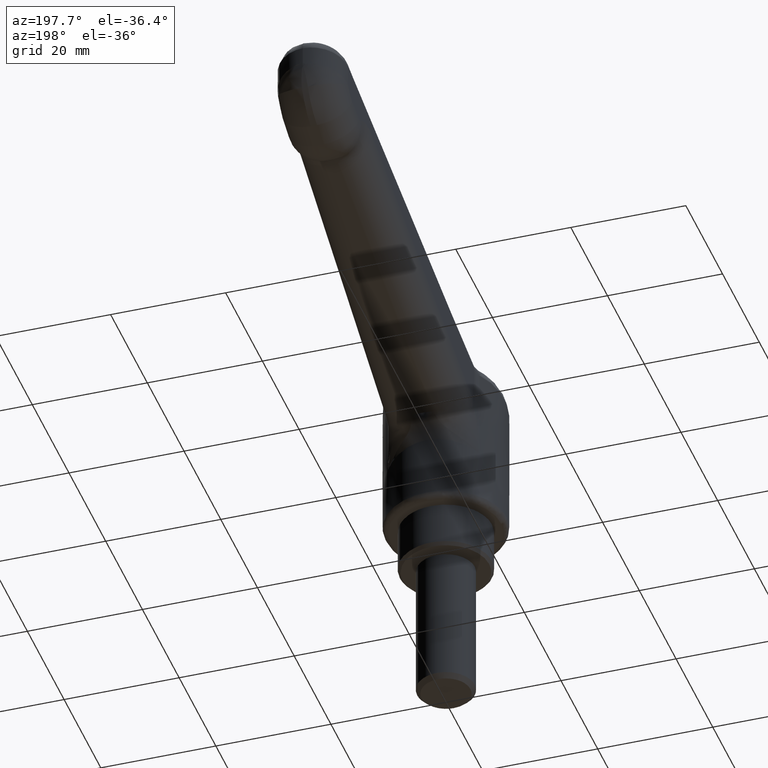
[diagram: clean part render]
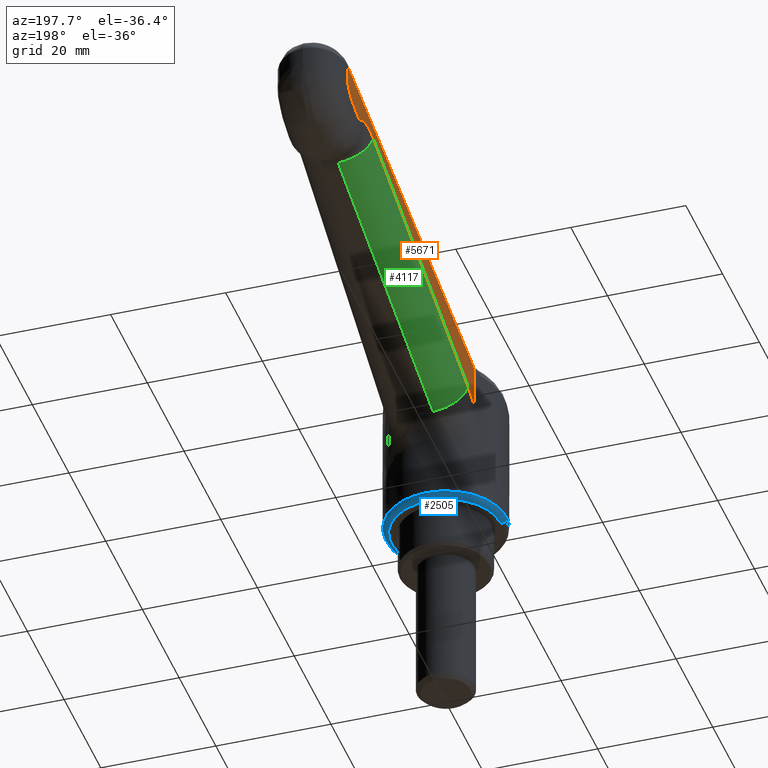
[diagram: same view with three faces highlighted in distinct colors, each labeled with its STEP entity id]
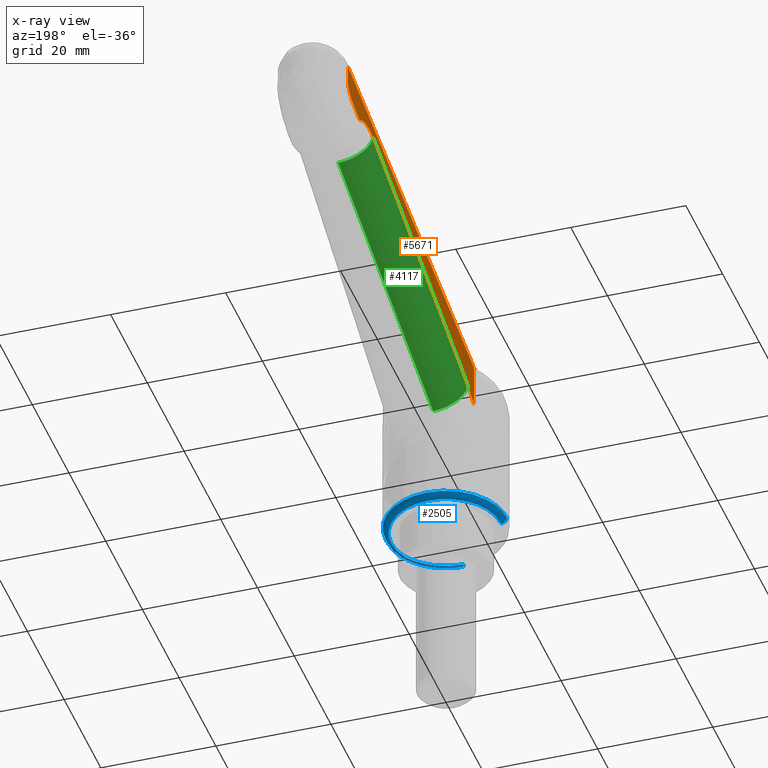
[diagram: x-ray of the same camera — body ghosted, the three highlighted faces saturated]
A machine part, auxiliary view with three faces highlighted in distinct colors.
The next image is the same camera in x-ray (body ghosted, the three faces saturated) — at least one of them is partly hidden behind the body in this view.
Their STEP definitions:

[orange] entity #5671 — the highlighted face is a freeform B-spline surface patch.
#3516=CARTESIAN_POINT('',(70.063429511224399,6.046502647905560,38.375896371800998));
#3517=VERTEX_POINT('',#3516);
#3561=CARTESIAN_POINT('',(72.139020671948700,5.998398053955600,40.354479944382241));
#3562=VERTEX_POINT('',#3561);
#3563=CARTESIAN_POINT('',(72.139020671948700,5.998398053955600,40.354479944382241));
#3564=CARTESIAN_POINT('',(71.919493884817115,6.003485880091970,39.937448182714853));
#3565=CARTESIAN_POINT('',(71.329258841761529,6.017165364577306,39.149056303363743));
#3566=CARTESIAN_POINT('',(70.517998242837422,6.035967411164078,38.587956642068058));
#3567=CARTESIAN_POINT('',(70.063429511224399,6.046502647905560,38.375896371800998));
#3568=B_SPLINE_CURVE_WITH_KNOTS('',3,(#3563,#3564,#3565,#3566,#3567),.UNSPECIFIED.,.F.,.U.,(4,1,4),(0.000000017542757,1.413835325056318,2.918853910196354),.UNSPECIFIED.);
#3569=EDGE_CURVE('',#3562,#3517,#3568,.T.);
#3842=CARTESIAN_POINT('',(66.568802097287204,6.127495299991820,37.103963821205006));
#3843=VERTEX_POINT('',#3842);
#3857=CARTESIAN_POINT('',(70.063429511224399,6.046502647905560,38.375896371800998));
#3858=CARTESIAN_POINT('',(66.568802097287204,6.127495299991820,37.103963821205006));
#3859=QUASI_UNIFORM_CURVE('',1,(#3857,#3858),.UNSPECIFIED.,.F.,.U.);
#3860=EDGE_CURVE('',#3517,#3843,#3859,.T.);
#3912=CARTESIAN_POINT('',(66.091553539716486,6.138556171954260,37.178566971879007));
#3913=VERTEX_POINT('',#3912);
#3928=CARTESIAN_POINT('',(66.568802097287204,6.127495299991820,37.103963821205006));
#3929=CARTESIAN_POINT('',(66.509595924255521,6.128867482031743,37.082345615708221));
#3930=CARTESIAN_POINT('',(66.404047867943888,6.131313699035892,37.065427659455452));
#3931=CARTESIAN_POINT('',(66.236697270916792,6.135192272364584,37.091579025518833));
#3932=CARTESIAN_POINT('',(66.141342917063142,6.137402236716128,37.139914470062443));
#3933=CARTESIAN_POINT('',(66.091553539716486,6.138556171954260,37.178566971879007));
#3934=B_SPLINE_CURVE_WITH_KNOTS('',3,(#3928,#3929,#3930,#3931,#3932,#3933),.UNSPECIFIED.,.F.,.U.,(4,1,1,4),(0.000000122252536,0.189110589915334,0.315160494910459,0.504270962573991),.UNSPECIFIED.);
#3935=EDGE_CURVE('',#3843,#3913,#3934,.T.);
#4032=CARTESIAN_POINT('',(59.410061699998501,6.293408658326110,38.223006701410803));
#4033=VERTEX_POINT('',#4032);
#4048=CARTESIAN_POINT('',(66.091553539716486,6.138556171954260,37.178566971879007));
#4049=CARTESIAN_POINT('',(65.699280665718334,6.147647619093905,37.482592196141908));
#4050=CARTESIAN_POINT('',(65.007037896239353,6.163691268715526,37.909537796394162));
#4051=CARTESIAN_POINT('',(63.843553326259332,6.190656575691708,38.373666897828741));
#4052=CARTESIAN_POINT('',(62.762102014649898,6.215720652474229,38.613325125239207));
#4053=CARTESIAN_POINT('',(61.583926292313343,6.243026446503995,38.670759771438263));
#4054=CARTESIAN_POINT('',(60.483941444608547,6.268520062709074,38.550569036602262));
#4055=CARTESIAN_POINT('',(59.755478980734743,6.285403152064680,38.348752892268621));
#4056=CARTESIAN_POINT('',(59.410061699998501,6.293408658326110,38.223006701410803));
#4057=B_SPLINE_CURVE_WITH_KNOTS('',3,(#4048,#4049,#4050,#4051,#4052,#4053,#4054,#4055,#4056),.UNSPECIFIED.,.F.,.U.,(4,1,1,1,1,1,4),(0.000000033048565,1.489117795305527,2.426720928346558,3.750367009560357,4.798268745425224,5.956484212588244,7.059526601533738),.UNSPECIFIED.);
#4058=EDGE_CURVE('',#3913,#4033,#4057,.T.);
#4089=CARTESIAN_POINT('',(11.251763202949100,7.409541468273670,20.694827340506350));
#4090=VERTEX_POINT('',#4089);
#4104=CARTESIAN_POINT('',(59.410061699998501,6.293408658326110,38.223006701410803));
#4105=CARTESIAN_POINT('',(11.251763202949100,7.409541468273670,20.694827340506350));
#4106=QUASI_UNIFORM_CURVE('',1,(#4104,#4105),.UNSPECIFIED.,.F.,.U.);
#4107=EDGE_CURVE('',#4033,#4090,#4106,.T.);
#4178=CARTESIAN_POINT('',(8.098602834848819,7.482620166061929,18.817905123507799));
#4179=VERTEX_POINT('',#4178);
#4193=CARTESIAN_POINT('',(11.251763202949100,7.409541468273670,20.694827340506350));
#4194=CARTESIAN_POINT('',(10.709981172137070,7.422097989564931,20.497206931239312));
#4195=CARTESIAN_POINT('',(9.591342915126090,7.448023923413896,19.973806190909212));
#4196=CARTESIAN_POINT('',(8.588241057029675,7.471272147094558,19.250932651148968));
#4197=CARTESIAN_POINT('',(8.098602834848819,7.482620166061929,18.817905123507799));
#4198=B_SPLINE_CURVE_WITH_KNOTS('',3,(#4193,#4194,#4195,#4196,#4197),.UNSPECIFIED.,.F.,.U.,(4,1,4),(2.721844E-009,1.730504130410525,3.691738114104900),.UNSPECIFIED.);
#4199=EDGE_CURVE('',#4090,#4179,#4198,.T.);
#4670=CARTESIAN_POINT('',(8.098602834848819,7.482620166061929,25.891804639626351));
#4671=VERTEX_POINT('',#4670);
#4672=CARTESIAN_POINT('',(8.098602834848819,7.482620166061929,18.817905123507799));
#4673=CARTESIAN_POINT('',(8.098602834848819,7.482620166061929,25.891804639626351));
#4674=QUASI_UNIFORM_CURVE('',1,(#4672,#4673),.UNSPECIFIED.,.F.,.U.);
#4675=EDGE_CURVE('',#4179,#4671,#4674,.T.);
#4740=CARTESIAN_POINT('',(8.012310873974581,7.484620097367070,26.550085542636548));
#4741=VERTEX_POINT('',#4740);
#4750=CARTESIAN_POINT('',(8.098602834848819,7.482620166061929,25.891804639626351));
#4751=CARTESIAN_POINT('',(8.099033198105190,7.482610191819388,26.113760241251750));
#4752=CARTESIAN_POINT('',(8.069918778191711,7.483284957338958,26.335742288662299));
#4753=CARTESIAN_POINT('',(8.012310873974581,7.484620097367070,26.550085542636548));
#4754=B_SPLINE_CURVE_WITH_KNOTS('',3,(#4750,#4751,#4752,#4753),.UNSPECIFIED.,.F.,.U.,(4,4),(3.114274E-009,0.665857954355767),.UNSPECIFIED.);
#4755=EDGE_CURVE('',#4671,#4741,#4754,.T.);
#5239=CARTESIAN_POINT('',(72.139020671948700,5.998398053955600,43.940390183805903));
#5240=VERTEX_POINT('',#5239);
#5241=CARTESIAN_POINT('',(8.012310873974581,7.484620097367070,26.550085542636548));
#5242=CARTESIAN_POINT('',(72.139020671948700,5.998398053955600,43.940390183805903));
#5243=QUASI_UNIFORM_CURVE('',1,(#5241,#5242),.UNSPECIFIED.,.F.,.U.);
#5244=EDGE_CURVE('',#4741,#5240,#5243,.T.);
#5602=CARTESIAN_POINT('',(72.139020671948700,5.998398053955600,43.940390183805903));
#5603=CARTESIAN_POINT('',(72.139020671948700,5.998398053955600,40.354479944382241));
#5604=QUASI_UNIFORM_CURVE('',1,(#5602,#5603),.UNSPECIFIED.,.F.,.U.);
#5605=EDGE_CURVE('',#5240,#3562,#5604,.T.);
#5654=CARTESIAN_POINT('',(4.809181843855790,7.558856885554888,17.563037279270080));
#5655=CARTESIAN_POINT('',(75.342151422079908,5.924161225904208,17.563037279270080));
#5656=CARTESIAN_POINT('',(4.809181843855790,7.558856885554888,45.195258926493693));
#5657=CARTESIAN_POINT('',(75.342151422079908,5.924161225904208,45.195258926493693));
#5658=B_SPLINE_SURFACE_WITH_KNOTS('',1,1,((#5654,#5656),(#5655,#5657)),.UNSPECIFIED.,.F.,.F.,.U.,(2,2),(2,2),(0.0,70.551910161400784),(0.0,27.632221647223609),.UNSPECIFIED.);
#5659=ORIENTED_EDGE('',*,*,#5605,.T.);
#5660=ORIENTED_EDGE('',*,*,#3569,.T.);
#5661=ORIENTED_EDGE('',*,*,#3860,.T.);
#5662=ORIENTED_EDGE('',*,*,#3935,.T.);
#5663=ORIENTED_EDGE('',*,*,#4058,.T.);
#5664=ORIENTED_EDGE('',*,*,#4107,.T.);
#5665=ORIENTED_EDGE('',*,*,#4199,.T.);
#5666=ORIENTED_EDGE('',*,*,#4675,.T.);
#5667=ORIENTED_EDGE('',*,*,#4755,.T.);
#5668=ORIENTED_EDGE('',*,*,#5244,.T.);
#5669=EDGE_LOOP('',(#5659,#5660,#5661,#5662,#5663,#5664,#5665,#5666,#5667,#5668));
#5670=FACE_OUTER_BOUND('',#5669,.T.);
#5671=ADVANCED_FACE('',(#5670),#5658,.F.);

[blue] entity #2505 — the highlighted face is a freeform B-spline surface patch.
#2222=CARTESIAN_POINT('',(-10.496683987474119,-0.263866002176170,0.999999998837832));
#2223=VERTEX_POINT('',#2222);
#2229=CARTESIAN_POINT('',(-6.823606671035972,-7.980500736106310,0.999999999470824));
#2230=VERTEX_POINT('',#2229);
#2231=CARTESIAN_POINT('',(-10.496683987474119,-0.263866002176170,0.999999998837832));
#2232=CARTESIAN_POINT('',(-10.471744071401030,-1.272119971757037,0.999999998895045));
#2233=CARTESIAN_POINT('',(-10.174689928970320,-3.006985097661583,0.999999999007722));
#2234=CARTESIAN_POINT('',(-9.266934105007444,-5.049954263787797,0.999999999171690));
#2235=CARTESIAN_POINT('',(-8.190580955172498,-6.651860047033151,0.999999999320666));
#2236=CARTESIAN_POINT('',(-7.363732089147244,-7.518808376661577,0.999999999415008));
#2237=CARTESIAN_POINT('',(-6.823606671035972,-7.980500736106310,0.999999999470824));
#2238=B_SPLINE_CURVE_WITH_KNOTS('',3,(#2231,#2232,#2233,#2234,#2235,#2236,#2237),.UNSPECIFIED.,.F.,.U.,(4,1,1,1,4),(0.000000019791649,3.025584876600992,5.225988502048120,6.670023301289797,8.801680140376416),.UNSPECIFIED.);
#2239=EDGE_CURVE('',#2223,#2230,#2238,.T.);
#2291=CARTESIAN_POINT('',(0.131912183239437,-10.499171356631580,1.0));
#2292=VERTEX_POINT('',#2291);
#2293=CARTESIAN_POINT('',(-6.823606671035972,-7.980500736106310,0.999999999470824));
#2294=CARTESIAN_POINT('',(-6.195271966397967,-8.518000241479895,0.999999999535789));
#2295=CARTESIAN_POINT('',(-5.107390253201968,-9.244874460041746,0.999999999636987));
#2296=CARTESIAN_POINT('',(-3.329092542282366,-10.004450948992460,0.999999999778676));
#2297=CARTESIAN_POINT('',(-1.680418723092213,-10.418694636674090,0.999999999893994));
#2298=CARTESIAN_POINT('',(-0.458644932361880,-10.506637272842189,0.999999999967321));
#2299=CARTESIAN_POINT('',(0.131912183239437,-10.499171356631580,1.0));
#2300=B_SPLINE_CURVE_WITH_KNOTS('',3,(#2293,#2294,#2295,#2296,#2297,#2298,#2299),.UNSPECIFIED.,.F.,.U.,(4,1,1,1,4),(0.000000010045590,2.480546349390412,3.897994978437403,5.787941479253051,7.559758750483608),.UNSPECIFIED.);
#2301=EDGE_CURVE('',#2230,#2292,#2300,.T.);
#2303=CARTESIAN_POINT('',(10.500000000000000,0.0,1.0));
#2304=VERTEX_POINT('',#2303);
#2305=CARTESIAN_POINT('',(0.131912183239437,-10.499171356631580,1.0));
#2306=CARTESIAN_POINT('',(0.770978699753913,-10.491204702229030,1.000000000035383));
#2307=CARTESIAN_POINT('',(2.005064396477851,-10.362463054739200,1.000000000097436));
#2308=CARTESIAN_POINT('',(3.854277892086205,-9.830015854068313,1.000000000171619));
#2309=CARTESIAN_POINT('',(5.539631423907890,-8.988713904803721,1.000000000219529));
#2310=CARTESIAN_POINT('',(6.939991891386305,-7.933752527671269,1.000000000239625));
#2311=CARTESIAN_POINT('',(8.252207693225497,-6.588886511582039,1.000000000238734));
#2312=CARTESIAN_POINT('',(9.302865033040188,-5.021096489038096,1.000000000210853));
#2313=CARTESIAN_POINT('',(10.017340644079500,-3.280423661580815,1.000000000154524));
#2314=CARTESIAN_POINT('',(10.408974426865390,-1.661685552564379,1.000000000086914));
#2315=CARTESIAN_POINT('',(10.500050231748761,-0.596507544304580,1.000000000032996));
#2316=CARTESIAN_POINT('',(10.500000000000000,0.0,1.0));
#2317=B_SPLINE_CURVE_WITH_KNOTS('',3,(#2305,#2306,#2307,#2308,#2309,#2310,#2311,#2312,#2313,#2314,#2315,#2316),.UNSPECIFIED.,.F.,.U.,(4,1,1,1,1,1,1,1,1,4),(0.000000011078143,1.917347357661868,3.706912762955957,5.752122616890112,7.541656325156962,8.947711353267774,11.376380424790259,13.165939782798841,14.572021672446301,16.361546803492761),.UNSPECIFIED.);
#2318=EDGE_CURVE('',#2292,#2304,#2317,.T.);
#2320=CARTESIAN_POINT('',(-0.263866002237175,10.496683987472579,0.999999998818028));
#2321=VERTEX_POINT('',#2320);
#2322=CARTESIAN_POINT('',(10.500000000000000,0.0,1.0));
#2323=CARTESIAN_POINT('',(10.500254519666729,0.872798148899244,1.000000000069988));
#2324=CARTESIAN_POINT('',(10.324827432811560,2.269108288749608,1.000000000148909));
#2325=CARTESIAN_POINT('',(9.767199499809141,3.928359819008225,1.000000000177062));
#2326=CARTESIAN_POINT('',(9.122588932268773,5.266798734347767,1.000000000163163));
#2327=CARTESIAN_POINT('',(8.298917312028433,6.507675233308455,1.000000000107776));
#2328=CARTESIAN_POINT('',(7.227244296011137,7.662391952833516,0.999999999998902));
#2329=CARTESIAN_POINT('',(5.975001989237819,8.686631496978601,0.999999999845598));
#2330=CARTESIAN_POINT('',(4.499915881496394,9.550379312282201,0.999999999637566));
#2331=CARTESIAN_POINT('',(2.935589097989994,10.119406217293180,0.999999999389152));
#2332=CARTESIAN_POINT('',(1.352438657595753,10.449419627683110,0.999999999118022));
#2333=CARTESIAN_POINT('',(0.346880412143083,10.512097653700140,0.999999998934059));
#2334=CARTESIAN_POINT('',(-0.263866002237175,10.496683987472579,0.999999998818028));
#2335=B_SPLINE_CURVE_WITH_KNOTS('',3,(#2322,#2323,#2324,#2325,#2326,#2327,#2328,#2329,#2330,#2331,#2332,#2333,#2334),.UNSPECIFIED.,.F.,.U.,(4,1,1,1,1,1,1,1,1,1,4),(0.000000020983066,2.618327826568883,4.189341233167387,5.236685077608231,7.069532976811420,8.640508790556979,9.949670715320716,11.913436697196300,13.746279603412781,14.924539871653590,16.757363750345000),.UNSPECIFIED.);
#2336=EDGE_CURVE('',#2304,#2321,#2335,.T.);
#2396=CARTESIAN_POINT('',(-0.263804843228224,10.494251063480691,1.069724187343619));
#2397=CARTESIAN_POINT('',(10.230446220252464,10.758055906708917,1.069724187343619));
#2398=CARTESIAN_POINT('',(10.494251063480691,0.263804843228225,1.069724187343619));
#2399=CARTESIAN_POINT('',(10.758055906708920,-10.230446220252464,1.069724187343619));
#2400=CARTESIAN_POINT('',(0.263804843228228,-10.494251063480691,1.069724187343619));
#2401=CARTESIAN_POINT('',(-10.230446220252462,-10.758055906708920,1.069724187343619));
#2402=CARTESIAN_POINT('',(-10.494251063480691,-0.263804843228229,1.069724187343619));
#2403=CARTESIAN_POINT('',(-0.265819596817833,10.574398682234275,-0.077335749656750));
#2404=CARTESIAN_POINT('',(10.308579085416440,10.840218279052110,-0.077335749656750));
#2405=CARTESIAN_POINT('',(10.574398682234275,0.265819596817834,-0.077335749656750));
#2406=CARTESIAN_POINT('',(10.840218279052111,-10.308579085416437,-0.077335749656750));
#2407=CARTESIAN_POINT('',(0.265819596817837,-10.574398682234275,-0.077335749656750));
#2408=CARTESIAN_POINT('',(-10.308579085416437,-10.840218279052111,-0.077335749656750));
#2409=CARTESIAN_POINT('',(-10.574398682234275,-0.265819596817837,-0.077335749656750));
#2410=CARTESIAN_POINT('',(-0.236993118695744,9.427671067277528,0.002407653517826));
#2411=CARTESIAN_POINT('',(9.190677948581779,9.664664185973267,0.002407653517826));
#2412=CARTESIAN_POINT('',(9.427671067277528,0.236993118695744,0.002407653517826));
#2413=CARTESIAN_POINT('',(9.664664185973273,-9.190677948581778,0.002407653517826));
#2414=CARTESIAN_POINT('',(0.236993118695747,-9.427671067277528,0.002407653517826));
#2415=CARTESIAN_POINT('',(-9.190677948581778,-9.664664185973273,0.002407653517826));
#2416=CARTESIAN_POINT('',(-9.427671067277528,-0.236993118695747,0.002407653517826));
#2424=(BOUNDED_SURFACE()B_SPLINE_SURFACE(2,2,((#2396,#2403,#2410),(#2397,#2404,#2411),(#2398,#2405,#2412),(#2399,#2406,#2413),(#2400,#2407,#2414),(#2401,#2408,#2415),(#2402,#2409,#2416)),.UNSPECIFIED.,.F.,.F.,.U.)B_SPLINE_SURFACE_WITH_KNOTS((3,2,2,3),(3,3),(0.0,17.392937345776598,34.785874691553197,52.178812037329813),(0.0,1.822370399371871),.UNSPECIFIED.)GEOMETRIC_REPRESENTATION_ITEM()RATIONAL_B_SPLINE_SURFACE(((0.910892942541887,0.599412921378678,0.915966645999969),(0.644098576606337,0.423848941437702,0.647686226727276),(0.910892942541887,0.599412921378678,0.915966645999969),(0.644098576606337,0.423848941437702,0.647686226727276),(0.910892942541887,0.599412921378678,0.915966645999969),(0.644098576606337,0.423848941437702,0.647686226727276),(0.910892942541887,0.599412921378678,0.915966645999969)))REPRESENTATION_ITEM('')SURFACE());
#2425=ORIENTED_EDGE('',*,*,#2336,.F.);
#2426=ORIENTED_EDGE('',*,*,#2318,.F.);
#2427=ORIENTED_EDGE('',*,*,#2301,.F.);
#2428=ORIENTED_EDGE('',*,*,#2239,.F.);
#2429=CARTESIAN_POINT('',(-9.496999807967775,-0.238735907450610,2.967641E-016));
#2430=VERTEX_POINT('',#2429);
#2431=CARTESIAN_POINT('',(-10.496683987474119,-0.263866002176170,0.999999998837832));
#2432=CARTESIAN_POINT('',(-10.496831996116830,-0.263869722819494,0.860900077641168));
#2433=CARTESIAN_POINT('',(-10.439510244890410,-0.262428766693373,0.591031101900196));
#2434=CARTESIAN_POINT('',(-10.223465266599749,-0.256997820717991,0.284227228813599));
#2435=CARTESIAN_POINT('',(-9.905723827332491,-0.249010425669908,0.060373087876653));
#2436=CARTESIAN_POINT('',(-9.652447934000243,-0.242643567698613,-0.000267512856939));
#2437=CARTESIAN_POINT('',(-9.496999807967775,-0.238735907450610,2.967641E-016));
#2438=B_SPLINE_CURVE_WITH_KNOTS('',3,(#2431,#2432,#2433,#2434,#2435,#2436,#2437),.UNSPECIFIED.,.F.,.U.,(4,1,1,1,4),(0.000000217545233,0.417256203269751,0.809930212139450,1.104490629144403,1.570835740831069),.UNSPECIFIED.);
#2439=EDGE_CURVE('',#2223,#2430,#2438,.T.);
#2440=ORIENTED_EDGE('',*,*,#2439,.T.);
#2441=CARTESIAN_POINT('',(0.119348517173616,-9.499250282598540,0.0));
#2442=VERTEX_POINT('',#2441);
#2443=CARTESIAN_POINT('',(0.119348517173616,-9.499250282598540,0.0));
#2444=CARTESIAN_POINT('',(-0.690143160070050,-9.509626575384582,1.264488E-017));
#2445=CARTESIAN_POINT('',(-2.118585449132317,-9.343924258014217,3.783203E-017));
#2446=CARTESIAN_POINT('',(-3.907532905330118,-8.710067324983356,7.603402E-017));
#2447=CARTESIAN_POINT('',(-5.188764035983165,-7.991813296908693,1.075215E-016));
#2448=CARTESIAN_POINT('',(-6.361742794011953,-7.109756126493407,1.398545E-016));
#2449=CARTESIAN_POINT('',(-7.330101681399943,-6.106501468265235,1.708430E-016));
#2450=CARTESIAN_POINT('',(-8.258675127986082,-4.776467158555201,2.063055E-016));
#2451=CARTESIAN_POINT('',(-8.934278443118602,-3.382201076429861,2.387688E-016));
#2452=CARTESIAN_POINT('',(-9.375736532668434,-1.778160207220418,2.708039E-016));
#2453=CARTESIAN_POINT('',(-9.484433557040161,-0.739724135391651,2.887412E-016));
#2454=CARTESIAN_POINT('',(-9.496999807967775,-0.238735907450610,2.967641E-016));
#2455=B_SPLINE_CURVE_WITH_KNOTS('',3,(#2443,#2444,#2445,#2446,#2447,#2448,#2449,#2450,#2451,#2452,#2453,#2454),.UNSPECIFIED.,.F.,.U.,(4,1,1,1,1,1,1,1,1,4),(0.000000032077260,2.428645133346008,4.279064475511349,5.666869623534355,6.823399056014204,8.673756165945653,9.830267048436530,11.680688662766199,13.299803247654509,14.803247129897130),.UNSPECIFIED.);
#2456=EDGE_CURVE('',#2442,#2430,#2455,.T.);
#2457=ORIENTED_EDGE('',*,*,#2456,.F.);
#2458=CARTESIAN_POINT('',(9.500000000000000,0.0,0.0));
#2459=VERTEX_POINT('',#2458);
#2460=CARTESIAN_POINT('',(9.500000000000000,0.0,0.0));
#2461=CARTESIAN_POINT('',(9.500032095757378,-0.578243765697557,-9.031159E-018));
#2462=CARTESIAN_POINT('',(9.383582654150992,-1.850408149753599,-2.705740E-017));
#2463=CARTESIAN_POINT('',(8.880929515846727,-3.521624773079371,-4.520805E-017));
#2464=CARTESIAN_POINT('',(8.174015052945613,-4.896707376535141,-5.550351E-017));
#2465=CARTESIAN_POINT('',(7.334896713141967,-6.100772369968383,-6.103734E-017));
#2466=CARTESIAN_POINT('',(6.367299259130005,-7.104772388369398,-6.141480E-017));
#2467=CARTESIAN_POINT('',(5.071634104185102,-8.080742191141633,-5.616617E-017));
#2468=CARTESIAN_POINT('',(3.702694016931224,-8.806287497931995,-4.584773E-017));
#2469=CARTESIAN_POINT('',(1.968009355725188,-9.351855118098726,-2.693433E-017));
#2470=CARTESIAN_POINT('',(0.774649487061365,-9.491112102283308,-1.023637E-017));
#2471=CARTESIAN_POINT('',(0.119348517173616,-9.499250282598540,0.0));
#2472=B_SPLINE_CURVE_WITH_KNOTS('',3,(#2460,#2461,#2462,#2463,#2464,#2465,#2466,#2467,#2468,#2469,#2470,#2471),.UNSPECIFIED.,.F.,.U.,(4,1,1,1,1,1,1,1,1,4),(0.000000032079663,1.734750094197553,3.816478500275176,5.204301306413402,6.360823668781730,8.211177384337395,9.367704118054519,11.218130817576951,12.837253169466450,14.803304849782981),.UNSPECIFIED.);
#2473=EDGE_CURVE('',#2459,#2442,#2472,.T.);
#2474=ORIENTED_EDGE('',*,*,#2473,.F.);
#2475=CARTESIAN_POINT('',(-0.238735907427713,9.496999807716602,2.655258E-016));
#2476=VERTEX_POINT('',#2475);
#2477=CARTESIAN_POINT('',(-0.238735907427713,9.496999807716602,2.655258E-016));
#2478=CARTESIAN_POINT('',(0.392786678933274,9.512946016665849,2.362083E-016));
#2479=CARTESIAN_POINT('',(1.658979163518203,9.418183008072958,1.798544E-016));
#2480=CARTESIAN_POINT('',(3.607152117866436,8.870564690434666,1.008427E-016));
#2481=CARTESIAN_POINT('',(5.429159538489382,7.893308237586894,3.585469E-017));
#2482=CARTESIAN_POINT('',(6.866029705125888,6.641276230478089,-6.178126E-018));
#2483=CARTESIAN_POINT('',(7.828807090178325,5.434036074063426,-2.728898E-017));
#2484=CARTESIAN_POINT('',(8.475451540664277,4.345752879916516,-3.615479E-017));
#2485=CARTESIAN_POINT('',(9.013423911786120,3.112982928106261,-3.726127E-017));
#2486=CARTESIAN_POINT('',(9.403253589772817,1.658251900425895,-2.731147E-017));
#2487=CARTESIAN_POINT('',(9.500048928918423,0.552751629551900,-1.058760E-017));
#2488=CARTESIAN_POINT('',(9.500000000000000,0.0,0.0));
#2489=B_SPLINE_CURVE_WITH_KNOTS('',3,(#2477,#2478,#2479,#2480,#2481,#2482,#2483,#2484,#2485,#2486,#2487,#2488),.UNSPECIFIED.,.F.,.U.,(4,1,1,1,1,1,1,1,1,4),(0.000000018736568,1.895172191621320,3.790356799305577,6.040901593535416,8.054493603289902,9.475870341424283,10.660372341219110,11.844867063244109,13.503166773423651,15.161424348600850),.UNSPECIFIED.);
#2490=EDGE_CURVE('',#2476,#2459,#2489,.T.);
#2491=ORIENTED_EDGE('',*,*,#2490,.F.);
#2492=CARTESIAN_POINT('',(-0.263866002237175,10.496683987472579,0.999999998818028));
#2493=CARTESIAN_POINT('',(-0.263866874438608,10.496718684279330,0.901825693229068));
#2494=CARTESIAN_POINT('',(-0.263133851947402,10.467558787363471,0.705490653703161));
#2495=CARTESIAN_POINT('',(-0.260201855059223,10.350922900561310,0.458783054768955));
#2496=CARTESIAN_POINT('',(-0.255806312907899,10.176066658245450,0.250950083755484));
#2497=CARTESIAN_POINT('',(-0.249010869338543,9.905741476873260,0.060359331190924));
#2498=CARTESIAN_POINT('',(-0.242643497972832,9.652445160841403,-0.000265374134013));
#2499=CARTESIAN_POINT('',(-0.238735907427713,9.496999807716602,2.655258E-016));
#2500=B_SPLINE_CURVE_WITH_KNOTS('',3,(#2492,#2493,#2494,#2495,#2496,#2497,#2498,#2499),.UNSPECIFIED.,.F.,.U.,(4,1,1,1,1,4),(0.000000217545403,0.294523343205755,0.589070182589636,0.809930212177062,1.104490629195807,1.570835740903820),.UNSPECIFIED.);
#2501=EDGE_CURVE('',#2321,#2476,#2500,.T.);
#2502=ORIENTED_EDGE('',*,*,#2501,.F.);
#2503=EDGE_LOOP('',(#2425,#2426,#2427,#2428,#2440,#2457,#2474,#2491,#2502));
#2504=FACE_OUTER_BOUND('',#2503,.T.);
#2505=ADVANCED_FACE('',(#2504),#2424,.T.);

[green] entity #4117 — the highlighted face is a freeform B-spline surface patch.
#4030=CARTESIAN_POINT('',(61.163736130805503,0.794885205271823,33.054697017193099));
#4031=VERTEX_POINT('',#4030);
#4032=CARTESIAN_POINT('',(59.410061699998501,6.293408658326110,38.223006701410803));
#4033=VERTEX_POINT('',#4032);
#4034=CARTESIAN_POINT('',(61.163736130805503,0.794885205271823,33.054697017193099));
#4035=CARTESIAN_POINT('',(61.170618434114921,1.130574705336433,33.057163562461078));
#4036=CARTESIAN_POINT('',(61.163492877477552,1.779568454886530,33.118066516432023));
#4037=CARTESIAN_POINT('',(61.099650036319012,2.645807574673594,33.348632419546298));
#4038=CARTESIAN_POINT('',(60.999048895071482,3.403175516472750,33.673258433532098));
#4039=CARTESIAN_POINT('',(60.843677597737923,4.200907142436651,34.150934499240272));
#4040=CARTESIAN_POINT('',(60.617274972262457,4.958572874263836,34.821216366999160));
#4041=CARTESIAN_POINT('',(60.279757346775249,5.681983424537703,35.794603075058902));
#4042=CARTESIAN_POINT('',(59.881828550324677,6.167123285775802,36.918795945923208));
#4043=CARTESIAN_POINT('',(59.563106114529042,6.289937430820112,37.802299405036017));
#4044=CARTESIAN_POINT('',(59.410061699998501,6.293408658326110,38.223006701410803));
#4045=B_SPLINE_CURVE_WITH_KNOTS('',3,(#4034,#4035,#4036,#4037,#4038,#4039,#4040,#4041,#4042,#4043,#4044),.UNSPECIFIED.,.F.,.U.,(4,1,1,1,1,1,1,1,4),(0.000000101769324,1.007304730574870,1.947493346571303,2.686203423045500,3.492088139735565,4.768007610007266,5.775321838771165,7.252754191082358,8.595847202870132),.UNSPECIFIED.);
#4046=EDGE_CURVE('',#4031,#4033,#4045,.T.);
#4073=CARTESIAN_POINT('',(9.998545241252073,7.436701247559301,20.391917680247278));
#4074=CARTESIAN_POINT('',(60.594857599714651,6.264064214108152,38.807461121297592));
#4075=CARTESIAN_POINT('',(12.017655519398273,7.544339504780888,14.851309332779781));
#4076=CARTESIAN_POINT('',(62.613967877860844,6.371702471329740,33.266852773830088));
#4077=CARTESIAN_POINT('',(11.793181169137730,1.655545387337092,15.093070119911200));
#4078=CARTESIAN_POINT('',(62.389493527600301,0.482908353885943,33.508613560961500));
#4086=(BOUNDED_SURFACE()B_SPLINE_SURFACE(1,2,((#4073,#4075,#4077),(#4074,#4076,#4078)),.UNSPECIFIED.,.F.,.F.,.U.)B_SPLINE_SURFACE_WITH_KNOTS((2,2),(3,3),(0.0,53.856235870292167),(0.0,9.565872249140517),.UNSPECIFIED.)GEOMETRIC_REPRESENTATION_ITEM()RATIONAL_B_SPLINE_SURFACE(((1.0,0.681998360062498,1.0),(1.0,0.681998360062498,1.0)))REPRESENTATION_ITEM('')SURFACE());
#4087=CARTESIAN_POINT('',(13.005437633756101,1.911018015219485,15.526517656288650));
#4088=VERTEX_POINT('',#4087);
#4089=CARTESIAN_POINT('',(11.251763202949100,7.409541468273670,20.694827340506350));
#4090=VERTEX_POINT('',#4089);
#4091=CARTESIAN_POINT('',(13.005437633756101,1.911018015219485,15.526517656288650));
#4092=CARTESIAN_POINT('',(13.014631728718630,2.358616887688046,15.529758598572091));
#4093=CARTESIAN_POINT('',(12.996284193975290,3.208990994531212,15.634316890594040));
#4094=CARTESIAN_POINT('',(12.875408999762140,4.349396280533282,16.039035902995980));
#4095=CARTESIAN_POINT('',(12.701132501638339,5.243852066150239,16.574812658452348));
#4096=CARTESIAN_POINT('',(12.459578909144780,6.073870273942255,17.291328635743291));
#4097=CARTESIAN_POINT('',(12.147990777805660,6.759907021436529,18.191094780027061));
#4098=CARTESIAN_POINT('',(11.723372932103119,7.277508227689580,19.390682268057081));
#4099=CARTESIAN_POINT('',(11.420116780999940,7.405793921827662,20.232040849260098));
#4100=CARTESIAN_POINT('',(11.251763202949100,7.409541468273670,20.694827340506350));
#4101=B_SPLINE_CURVE_WITH_KNOTS('',3,(#4091,#4092,#4093,#4094,#4095,#4096,#4097,#4098,#4099,#4100),.UNSPECIFIED.,.F.,.U.,(4,1,1,1,1,1,1,4),(0.000000101785389,1.343096442908988,2.551899529230130,3.626387389104066,4.499370050279554,5.909642451563633,7.118449013597997,8.595847202870024),.UNSPECIFIED.);
#4102=EDGE_CURVE('',#4088,#4090,#4101,.T.);
#4103=ORIENTED_EDGE('',*,*,#4102,.T.);
#4104=CARTESIAN_POINT('',(59.410061699998501,6.293408658326110,38.223006701410803));
#4105=CARTESIAN_POINT('',(11.251763202949100,7.409541468273670,20.694827340506350));
#4106=QUASI_UNIFORM_CURVE('',1,(#4104,#4105),.UNSPECIFIED.,.F.,.U.);
#4107=EDGE_CURVE('',#4033,#4090,#4106,.T.);
#4108=ORIENTED_EDGE('',*,*,#4107,.F.);
#4109=ORIENTED_EDGE('',*,*,#4046,.F.);
#4110=CARTESIAN_POINT('',(13.005437633756101,1.911018015219485,15.526517656288650));
#4111=CARTESIAN_POINT('',(61.163736130805503,0.794885205271823,33.054697017193099));
#4112=QUASI_UNIFORM_CURVE('',1,(#4110,#4111),.UNSPECIFIED.,.F.,.U.);
#4113=EDGE_CURVE('',#4088,#4031,#4112,.T.);
#4114=ORIENTED_EDGE('',*,*,#4113,.F.);
#4115=EDGE_LOOP('',(#4103,#4108,#4109,#4114));
#4116=FACE_OUTER_BOUND('',#4115,.T.);
#4117=ADVANCED_FACE('',(#4116),#4086,.T.);